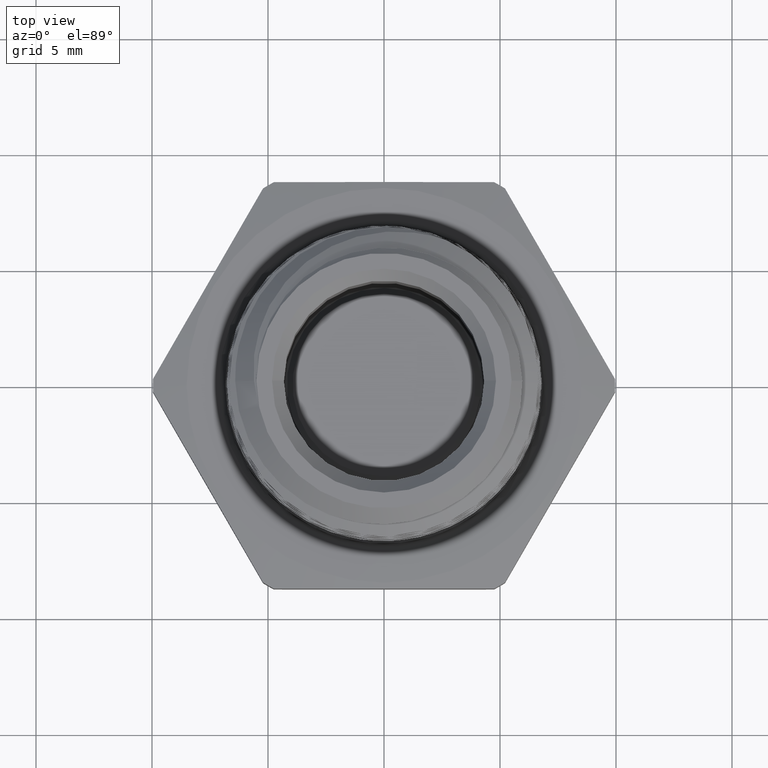
[diagram: clean part render]
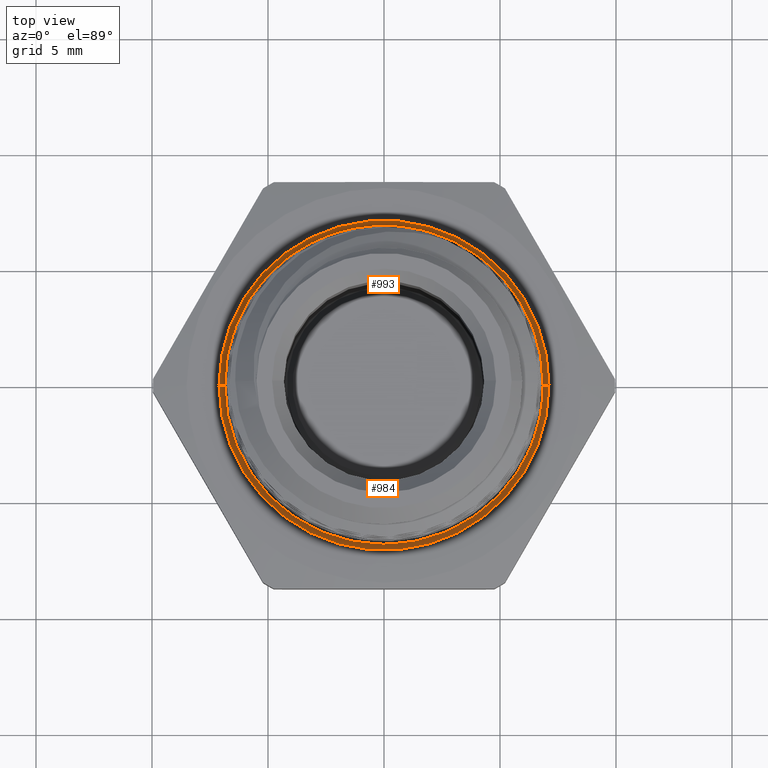
[diagram: same view with one multi-face feature highlighted, each face labeled with its STEP entity id]
A machine part, top view. The highlighted faces form ONE feature: a constant-radius fillet chain: 2 tangent blend faces with common blend radius 0.254 mm. The faces share edges in the B-rep.
Their STEP definitions:
[1] entity #993 (Torus):
#811 = CARTESIAN_POINT ( 'NONE',  ( 0.0000000000000000000, 0.0000000000000000000, 0.1200000000000000200 ) ) ;
#812 = DIRECTION ( 'NONE',  ( -0.0000000000000000000, 0.0000000000000000000, 1.000000000000000000 ) ) ;
#813 = DIRECTION ( 'NONE',  ( 1.000000000000000000, 0.0000000000000000000, 0.0000000000000000000 ) ) ;
#832 = DIRECTION ( 'NONE',  ( 1.224646799147353200E-016, 1.000000000000000000, 0.0000000000000000000 ) ) ;
#993 = ADVANCED_FACE ( 'NONE', ( #2143 ), #2142, .F. ) ;
#1294 = ORIENTED_EDGE ( 'NONE', *, *, #1444, .F. ) ;
#1295 = ORIENTED_EDGE ( 'NONE', *, *, #1401, .F. ) ;
#1296 = ORIENTED_EDGE ( 'NONE', *, *, #1446, .T. ) ;
#1297 = ORIENTED_EDGE ( 'NONE', *, *, #1736, .F. ) ;
#1401 = EDGE_CURVE ( 'NONE', #1466, #1463, #2186, .T. ) ;
#1444 = EDGE_CURVE ( 'NONE', #1463, #1469, #2236, .T. ) ;
#1446 = EDGE_CURVE ( 'NONE', #1466, #1468, #2237, .T. ) ;
#1463 = VERTEX_POINT ( 'NONE', #4057 ) ;
#1466 = VERTEX_POINT ( 'NONE', #4060 ) ;
#1468 = VERTEX_POINT ( 'NONE', #4062 ) ;
#1469 = VERTEX_POINT ( 'NONE', #4063 ) ;
#1604 = EDGE_LOOP ( 'NONE', ( #1294, #1295, #1296, #1297 ) ) ;
#1736 = EDGE_CURVE ( 'NONE', #1469, #1468, #4697, .T. ) ;
#1801 = AXIS2_PLACEMENT_3D ( 'NONE', #1889, #1887, #1891 ) ;
#1887 = DIRECTION ( 'NONE',  ( -0.0000000000000000000, 0.0000000000000000000, 1.000000000000000000 ) ) ;
#1889 = CARTESIAN_POINT ( 'NONE',  ( 0.0000000000000000000, 0.0000000000000000000, 0.1200000000000000200 ) ) ;
#1891 = DIRECTION ( 'NONE',  ( 1.000000000000000000, 0.0000000000000000000, 0.0000000000000000000 ) ) ;
#2142 = TOROIDAL_SURFACE ( 'NONE', #1801, 0.2800000000000000300, 0.01000000000000000000 ) ;
#2143 = FACE_OUTER_BOUND ( 'NONE', #1604, .T. ) ;
#2186 = CIRCLE ( 'NONE', #2286, 0.2700000000000000200 ) ;
#2236 = CIRCLE ( 'NONE', #2294, 0.009999999999999995000 ) ;
#2237 = CIRCLE ( 'NONE', #2296, 0.009999999999999995000 ) ;
#2286 = AXIS2_PLACEMENT_3D ( 'NONE', #811, #812, #813 ) ;
#2294 = AXIS2_PLACEMENT_3D ( 'NONE', #3987, #832, #4023 ) ;
#2296 = AXIS2_PLACEMENT_3D ( 'NONE', #4027, #4028, #4029 ) ;
#2324 = AXIS2_PLACEMENT_3D ( 'NONE', #5354, #5355, #5356 ) ;
#3987 = CARTESIAN_POINT ( 'NONE',  ( -0.2800000000000000300, 3.429011037612588800E-017, 0.1200000000000000200 ) ) ;
#4023 = DIRECTION ( 'NONE',  ( -1.000000000000000000, 1.224646799147351000E-016, 0.0000000000000000000 ) ) ;
#4027 = CARTESIAN_POINT ( 'NONE',  ( 0.2800000000000000300, 0.0000000000000000000, 0.1200000000000000200 ) ) ;
#4028 = DIRECTION ( 'NONE',  ( 0.0000000000000000000, -1.000000000000000000, 0.0000000000000000000 ) ) ;
#4029 = DIRECTION ( 'NONE',  ( 0.0000000000000000000, 0.0000000000000000000, -1.000000000000000000 ) ) ;
#4057 = CARTESIAN_POINT ( 'NONE',  ( -0.2700000000000000200, 0.0000000000000000000, 0.1200000000000000200 ) ) ;
#4060 = CARTESIAN_POINT ( 'NONE',  ( 0.2700000000000000200, 3.306546357697853700E-017, 0.1200000000000000200 ) ) ;
#4062 = CARTESIAN_POINT ( 'NONE',  ( 0.2800000000000000300, 0.0000000000000000000, 0.1100000000000000300 ) ) ;
#4063 = CARTESIAN_POINT ( 'NONE',  ( -0.2800000000000000300, 3.429011037612588800E-017, 0.1100000000000000300 ) ) ;
#4697 = CIRCLE ( 'NONE', #2324, 0.2800000000000000300 ) ;
#5354 = CARTESIAN_POINT ( 'NONE',  ( 0.0000000000000000000, 0.0000000000000000000, 0.1100000000000000000 ) ) ;
#5355 = DIRECTION ( 'NONE',  ( 0.0000000000000000000, -0.0000000000000000000, -1.000000000000000000 ) ) ;
#5356 = DIRECTION ( 'NONE',  ( 1.000000000000000000, 0.0000000000000000000, 0.0000000000000000000 ) ) ;
[2] entity #984 (Torus):
#27 = ORIENTED_EDGE ( 'NONE', *, *, #1443, .F. ) ;
#33 = ORIENTED_EDGE ( 'NONE', *, *, #1446, .F. ) ;
#36 = ORIENTED_EDGE ( 'NONE', *, *, #1445, .F. ) ;
#38 = ORIENTED_EDGE ( 'NONE', *, *, #1444, .T. ) ;
#832 = DIRECTION ( 'NONE',  ( 1.224646799147353200E-016, 1.000000000000000000, 0.0000000000000000000 ) ) ;
#984 = ADVANCED_FACE ( 'NONE', ( #2124 ), #2127, .F. ) ;
#1443 = EDGE_CURVE ( 'NONE', #1463, #1466, #2233, .T. ) ;
#1444 = EDGE_CURVE ( 'NONE', #1463, #1469, #2236, .T. ) ;
#1445 = EDGE_CURVE ( 'NONE', #1468, #1469, #2234, .T. ) ;
#1446 = EDGE_CURVE ( 'NONE', #1466, #1468, #2237, .T. ) ;
#1463 = VERTEX_POINT ( 'NONE', #4057 ) ;
#1466 = VERTEX_POINT ( 'NONE', #4060 ) ;
#1468 = VERTEX_POINT ( 'NONE', #4062 ) ;
#1469 = VERTEX_POINT ( 'NONE', #4063 ) ;
#1633 = EDGE_LOOP ( 'NONE', ( #27, #38, #36, #33 ) ) ;
#1792 = AXIS2_PLACEMENT_3D ( 'NONE', #1856, #1857, #1861 ) ;
#1856 = CARTESIAN_POINT ( 'NONE',  ( 0.0000000000000000000, 0.0000000000000000000, 0.1200000000000000200 ) ) ;
#1857 = DIRECTION ( 'NONE',  ( -0.0000000000000000000, 0.0000000000000000000, 1.000000000000000000 ) ) ;
#1861 = DIRECTION ( 'NONE',  ( 1.000000000000000000, 0.0000000000000000000, 0.0000000000000000000 ) ) ;
#2124 = FACE_OUTER_BOUND ( 'NONE', #1633, .T. ) ;
#2127 = TOROIDAL_SURFACE ( 'NONE', #1792, 0.2800000000000000300, 0.01000000000000000000 ) ;
#2233 = CIRCLE ( 'NONE', #2293, 0.2700000000000000200 ) ;
#2234 = CIRCLE ( 'NONE', #2295, 0.2800000000000000300 ) ;
#2236 = CIRCLE ( 'NONE', #2294, 0.009999999999999995000 ) ;
#2237 = CIRCLE ( 'NONE', #2296, 0.009999999999999995000 ) ;
#2293 = AXIS2_PLACEMENT_3D ( 'NONE', #3984, #3985, #3986 ) ;
#2294 = AXIS2_PLACEMENT_3D ( 'NONE', #3987, #832, #4023 ) ;
#2295 = AXIS2_PLACEMENT_3D ( 'NONE', #4024, #4025, #4026 ) ;
#2296 = AXIS2_PLACEMENT_3D ( 'NONE', #4027, #4028, #4029 ) ;
#3984 = CARTESIAN_POINT ( 'NONE',  ( 0.0000000000000000000, 0.0000000000000000000, 0.1200000000000000200 ) ) ;
#3985 = DIRECTION ( 'NONE',  ( -0.0000000000000000000, 0.0000000000000000000, 1.000000000000000000 ) ) ;
#3986 = DIRECTION ( 'NONE',  ( 1.000000000000000000, 0.0000000000000000000, 0.0000000000000000000 ) ) ;
#3987 = CARTESIAN_POINT ( 'NONE',  ( -0.2800000000000000300, 3.429011037612588800E-017, 0.1200000000000000200 ) ) ;
#4023 = DIRECTION ( 'NONE',  ( -1.000000000000000000, 1.224646799147351000E-016, 0.0000000000000000000 ) ) ;
#4024 = CARTESIAN_POINT ( 'NONE',  ( 0.0000000000000000000, 0.0000000000000000000, 0.1100000000000000000 ) ) ;
#4025 = DIRECTION ( 'NONE',  ( 0.0000000000000000000, -0.0000000000000000000, -1.000000000000000000 ) ) ;
#4026 = DIRECTION ( 'NONE',  ( 1.000000000000000000, 0.0000000000000000000, 0.0000000000000000000 ) ) ;
#4027 = CARTESIAN_POINT ( 'NONE',  ( 0.2800000000000000300, 0.0000000000000000000, 0.1200000000000000200 ) ) ;
#4028 = DIRECTION ( 'NONE',  ( 0.0000000000000000000, -1.000000000000000000, 0.0000000000000000000 ) ) ;
#4029 = DIRECTION ( 'NONE',  ( 0.0000000000000000000, 0.0000000000000000000, -1.000000000000000000 ) ) ;
#4057 = CARTESIAN_POINT ( 'NONE',  ( -0.2700000000000000200, 0.0000000000000000000, 0.1200000000000000200 ) ) ;
#4060 = CARTESIAN_POINT ( 'NONE',  ( 0.2700000000000000200, 3.306546357697853700E-017, 0.1200000000000000200 ) ) ;
#4062 = CARTESIAN_POINT ( 'NONE',  ( 0.2800000000000000300, 0.0000000000000000000, 0.1100000000000000300 ) ) ;
#4063 = CARTESIAN_POINT ( 'NONE',  ( -0.2800000000000000300, 3.429011037612588800E-017, 0.1100000000000000300 ) ) ;